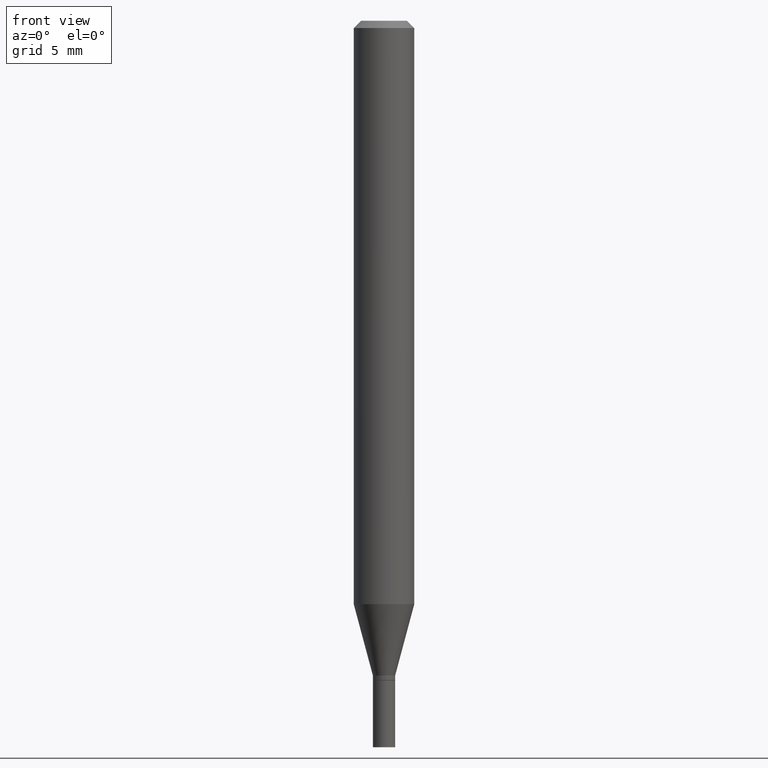
[diagram: clean part render]
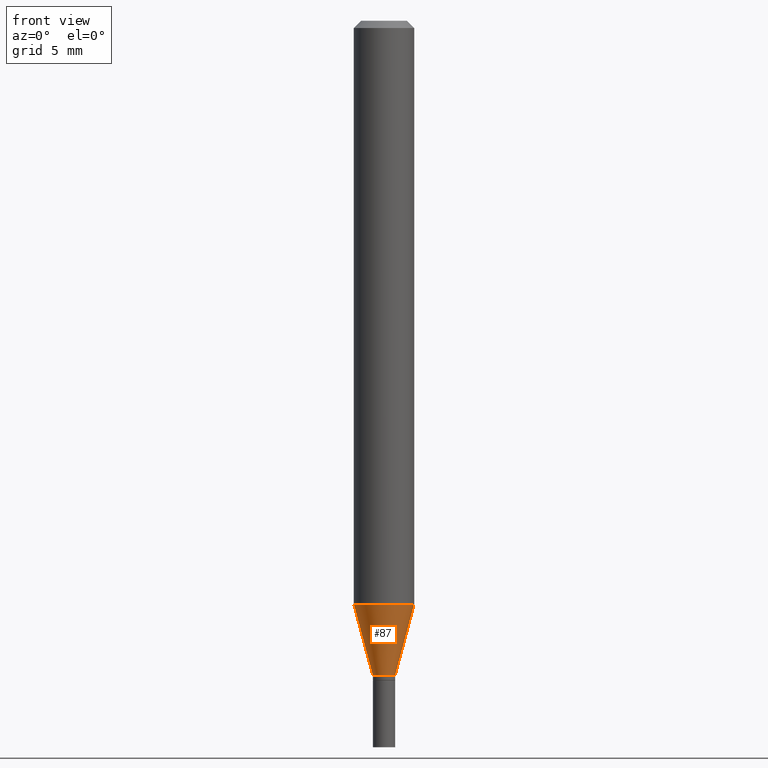
[diagram: same view with one face highlighted and labeled with its STEP entity id]
A machine part, front view. The second image highlights one B-rep face of the part: STEP entity #87.
In plain terms, the highlighted conical surface has half-angle 15 deg.
Its self-contained STEP definition (entity closure, byte-faithful):
#2 = CARTESIAN_POINT ( 'NONE',  ( 0.02299999999999992675, -4.881090911702717249E-15, -1.352000000000000313 ) ) ;
#4 = CARTESIAN_POINT ( 'NONE',  ( 0.02299999999999992675, -4.881090911702717249E-15, -1.352000000000000313 ) ) ;
#16 = AXIS2_PLACEMENT_3D ( 'NONE', #243, #350, #319 ) ;
#22 = EDGE_CURVE ( 'NONE', #321, #124, #229, .T. ) ;
#30 = CARTESIAN_POINT ( 'NONE',  ( 0.06250000000000000000, -4.642217700336797405E-15, -1.204583993101029815 ) ) ;
#39 = ORIENTED_EDGE ( 'NONE', *, *, #108, .F. ) ;
#48 = ORIENTED_EDGE ( 'NONE', *, *, #22, .T. ) ;
#61 = DIRECTION ( 'NONE',  ( -2.445468806185136597E-29, 3.491481338843145583E-15, 1.000000000000000000 ) ) ;
#87 = ADVANCED_FACE ( 'NONE', ( #273 ), #268, .T. ) ;
#88 = ORIENTED_EDGE ( 'NONE', *, *, #156, .F. ) ;
#97 = CARTESIAN_POINT ( 'NONE',  ( 3.306273825962305163E-29, -4.720482770115934188E-15, -1.352000000000000313 ) ) ;
#103 = AXIS2_PLACEMENT_3D ( 'NONE', #97, #61, #110 ) ;
#108 = EDGE_CURVE ( 'NONE', #368, #462, #345, .T. ) ;
#110 = DIRECTION ( 'NONE',  ( 1.000000000000000000, -6.982962677686269866E-15, 0.000000000000000000 ) ) ;
#117 = CARTESIAN_POINT ( 'NONE',  ( 3.306273825962305163E-29, -4.720482770115934188E-15, -1.352000000000000313 ) ) ;
#121 = CARTESIAN_POINT ( 'NONE',  ( -0.02299999999999992675, -4.159375632011227060E-15, -1.352000000000000313 ) ) ;
#124 = VERTEX_POINT ( 'NONE', #30 ) ;
#156 = EDGE_CURVE ( 'NONE', #462, #124, #186, .T. ) ;
#158 = VECTOR ( 'NONE', #451, 39.37007874015748143 ) ;
#159 = CARTESIAN_POINT ( 'NONE',  ( -0.06250000000000000000, -3.761693323131343908E-15, -1.204583993101029815 ) ) ;
#181 = EDGE_LOOP ( 'NONE', ( #39, #374, #48, #88 ) ) ;
#186 = CIRCLE ( 'NONE', #16, 0.06250000000000000000 ) ;
#190 = DIRECTION ( 'NONE',  ( 1.000000000000000000, -6.982962677686269866E-15, 0.000000000000000000 ) ) ;
#229 = LINE ( 'NONE', #4, #380 ) ;
#243 = CARTESIAN_POINT ( 'NONE',  ( 2.945772579558500025E-29, -4.205782532981405736E-15, -1.204583993101029815 ) ) ;
#268 = CONICAL_SURFACE ( 'NONE', #103, 0.02299999999999992675, 0.2617993877991502405 ) ;
#273 = FACE_OUTER_BOUND ( 'NONE', #181, .T. ) ;
#319 = DIRECTION ( 'NONE',  ( 1.000000000000000000, -6.982962677686270655E-15, 0.000000000000000000 ) ) ;
#321 = VERTEX_POINT ( 'NONE', #2 ) ;
#345 = LINE ( 'NONE', #353, #158 ) ;
#350 = DIRECTION ( 'NONE',  ( -2.445468806185136597E-29, 3.491481338843145583E-15, 1.000000000000000000 ) ) ;
#353 = CARTESIAN_POINT ( 'NONE',  ( -0.02299999999999992675, -4.557057940891111789E-15, -1.352000000000000313 ) ) ;
#368 = VERTEX_POINT ( 'NONE', #121 ) ;
#371 = DIRECTION ( 'NONE',  ( -2.445468806185136597E-29, 3.491481338843145583E-15, 1.000000000000000000 ) ) ;
#372 = DIRECTION ( 'NONE',  ( 0.2588190451025215166, 1.565188264969620784E-15, 0.9659258262890679791 ) ) ;
#374 = ORIENTED_EDGE ( 'NONE', *, *, #441, .T. ) ;
#380 = VECTOR ( 'NONE', #372, 39.37007874015748143 ) ;
#441 = EDGE_CURVE ( 'NONE', #368, #321, #448, .T. ) ;
#448 = CIRCLE ( 'NONE', #454, 0.02299999999999992675 ) ;
#451 = DIRECTION ( 'NONE',  ( -0.2588190451025215166, 5.211531920934551042E-15, 0.9659258262890679791 ) ) ;
#454 = AXIS2_PLACEMENT_3D ( 'NONE', #117, #371, #190 ) ;
#462 = VERTEX_POINT ( 'NONE', #159 ) ;